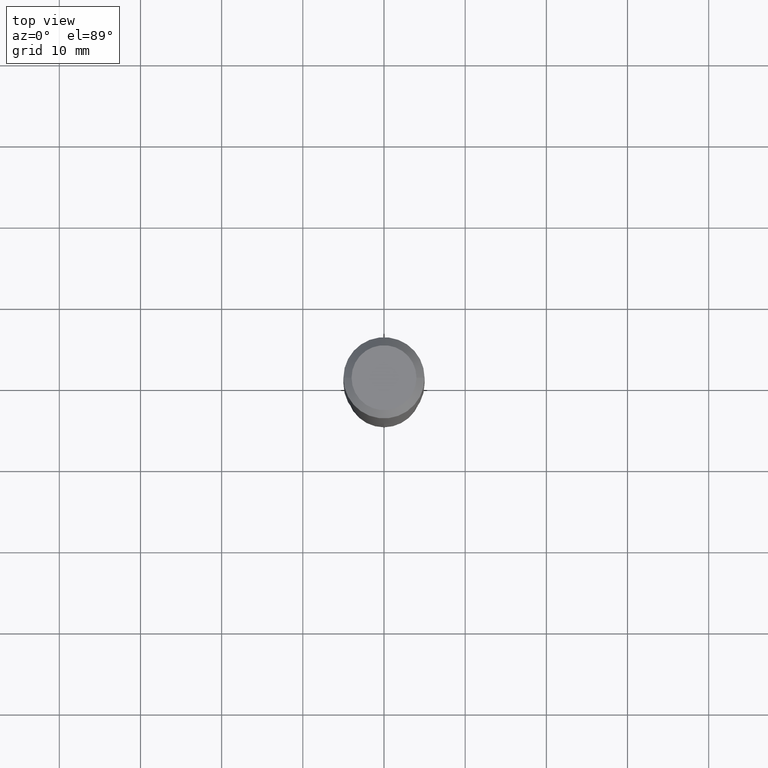
[diagram: clean part render]
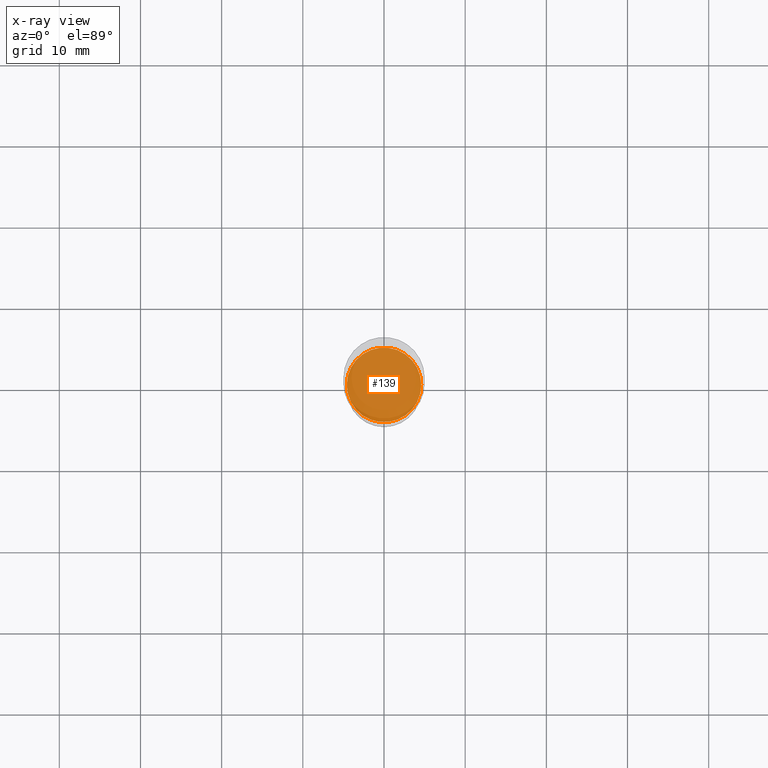
[diagram: x-ray — body ghosted, one internal face saturated and labeled with its STEP entity id]
A machine part, top view, then the same camera in x-ray: the body is ghosted and one INTERNAL B-rep face — a face not visible from any outside direction — is saturated and labeled: STEP entity #139.
In plain terms, the highlighted planar face has unit normal (-0, 0, 1).
Its self-contained STEP definition (entity closure, byte-faithful):
#2 = CARTESIAN_POINT ( 'NONE',  ( 4.929331472627378640E-29, -7.037778934706127166E-15, -2.015699999999999381 ) ) ;
#9 = DIRECTION ( 'NONE',  ( 1.000000000000000000, -6.982962677686263555E-15, 0.000000000000000000 ) ) ;
#34 = PLANE ( 'NONE',  #334 ) ;
#41 = DIRECTION ( 'NONE',  ( -2.438088387897960049E-29, 3.491481338843145188E-15, 1.000000000000000000 ) ) ;
#48 = CARTESIAN_POINT ( 'NONE',  ( -0.1806000000000000105, -5.751889526749275152E-15, -2.015699999999999381 ) ) ;
#53 = ORIENTED_EDGE ( 'NONE', *, *, #402, .F. ) ;
#55 = VERTEX_POINT ( 'NONE', #348 ) ;
#61 = AXIS2_PLACEMENT_3D ( 'NONE', #2, #276, #196 ) ;
#75 = FACE_OUTER_BOUND ( 'NONE', #220, .T. ) ;
#109 = CARTESIAN_POINT ( 'NONE',  ( 4.929331472627378640E-29, -7.037778934706127166E-15, -2.015699999999999381 ) ) ;
#134 = ORIENTED_EDGE ( 'NONE', *, *, #371, .F. ) ;
#139 = ADVANCED_FACE ( 'NONE', ( #75 ), #34, .F. ) ;
#167 = AXIS2_PLACEMENT_3D ( 'NONE', #109, #349, #9 ) ;
#196 = DIRECTION ( 'NONE',  ( 1.000000000000000000, -6.982962677686263555E-15, 0.000000000000000000 ) ) ;
#220 = EDGE_LOOP ( 'NONE', ( #53, #134 ) ) ;
#251 = VERTEX_POINT ( 'NONE', #48 ) ;
#276 = DIRECTION ( 'NONE',  ( -2.445468806185136597E-29, 3.491481338843145583E-15, 1.000000000000000000 ) ) ;
#334 = AXIS2_PLACEMENT_3D ( 'NONE', #489, #41, #462 ) ;
#348 = CARTESIAN_POINT ( 'NONE',  ( 0.1806000000000000105, -8.298901994296266309E-15, -2.015699999999999381 ) ) ;
#349 = DIRECTION ( 'NONE',  ( -2.445468806185136597E-29, 3.491481338843145583E-15, 1.000000000000000000 ) ) ;
#371 = EDGE_CURVE ( 'NONE', #251, #55, #447, .T. ) ;
#402 = EDGE_CURVE ( 'NONE', #55, #251, #408, .T. ) ;
#408 = CIRCLE ( 'NONE', #167, 0.1806000000000000105 ) ;
#447 = CIRCLE ( 'NONE', #61, 0.1806000000000000105 ) ;
#462 = DIRECTION ( 'NONE',  ( 1.000000000000000000, -6.982962677686265922E-15, 4.876176775795935793E-29 ) ) ;
#489 = CARTESIAN_POINT ( 'NONE',  ( 7.058472365498860368E-29, -3.988727992940315729E-15, -2.015699999999999381 ) ) ;